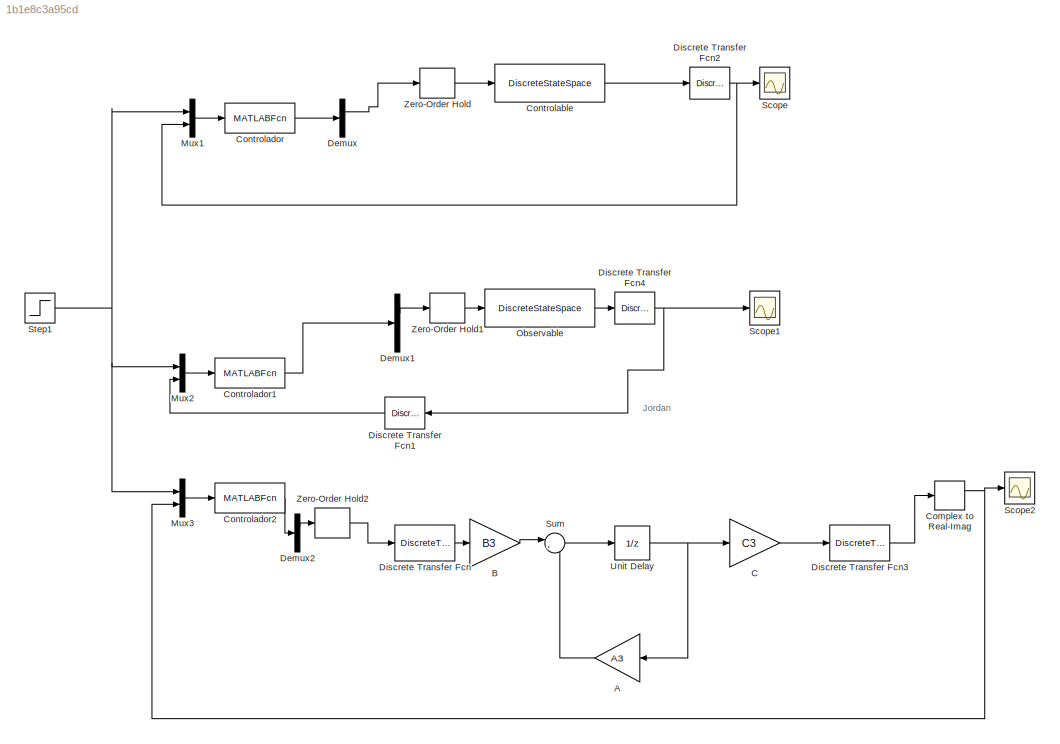
MODEL slx_1b1e8c3a95cd
KIND model
CONFIG AbsTol = auto
CONFIG EnableMultiTasking = off
CONFIG FixedStep = auto
CONFIG MaxStep = auto
CONFIG MinStep = auto
CONFIG RelTol = 1e-3
CONFIG SampleTimeConstraint = Unconstrained
CONFIG Solver = VariableStepAuto
CONFIG SolverName = VariableStepAuto
CONFIG StartTime = 0.0
CONFIG StopTime = ttotal
BLOCK [Gain] A
  Gain = A3
  Multiplication = Matrix(K*u)
  OutDataTypeStr = Inherit: Inherit via internal rule
  ParamDataTypeStr = Inherit: Inherit via internal rule
  SaturateOnIntegerOverflow = off
BLOCK [Gain] B
  Gain = B3
  Multiplication = Matrix(K*u)
  OutDataTypeStr = Inherit: Inherit via internal rule
  ParamDataTypeStr = Inherit: Inherit via internal rule
  SaturateOnIntegerOverflow = off
BLOCK [Gain] C
  Gain = C3
  Multiplication = Matrix(K*u)
  OutDataTypeStr = Inherit: Inherit via internal rule
  ParamDataTypeStr = Inherit: Inherit via internal rule
  SaturateOnIntegerOverflow = off
BLOCK [ComplexToRealImag] Complex to Real-Imag
  Ports = [1, 2]
BLOCK [DiscreteStateSpace] Controlable
  A = A1
  B = B1
  C = C1
  D = 0
  SampleTime = tmuestra
BLOCK [MATLABFcn] Controlador
  MATLABFcn = ControlDiscretoBAB(u(1), u(2))
  OutputDimensions = 2
  Ports = [1, 1]
BLOCK [MATLABFcn] Controlador1
  MATLABFcn = ControlDiscretoBAB(u(1), u(2))
  OutputDimensions = 2
  Ports = [1, 1]
BLOCK [MATLABFcn] Controlador2
  MATLABFcn = ControlDiscretoBAB(u(1), u(2))
  OutputDimensions = 2
  Ports = [1, 1]
BLOCK [Demux] Demux
  DisplayOption = bar
  Outputs = 2
  Ports = [1, 2]
BLOCK [Demux] Demux1
  DisplayOption = bar
  Outputs = 2
  Ports = [1, 2]
BLOCK [Demux] Demux2
  DisplayOption = bar
  Outputs = 2
  Ports = [1, 2]
BLOCK [DiscreteTransferFcn] Discrete Transfer Fcn
  Denominator = [1]
  InputPortMap = u0
  Ports = [1, 1]
  SampleTime = tmuestra
BLOCK [DiscreteTransferFcn] Discrete Transfer Fcn1
  Denominator = [1]
  InputPortMap = u0
  Ports = [1, 1]
  SampleTime = tmuestra
BLOCK [DiscreteTransferFcn] Discrete Transfer Fcn2
  Denominator = [1]
  InputPortMap = u0
  Ports = [1, 1]
  SampleTime = tmuestra
BLOCK [DiscreteTransferFcn] Discrete Transfer Fcn3
  Denominator = [1]
  InputPortMap = u0
  Ports = [1, 1]
  SampleTime = tmuestra
BLOCK [DiscreteTransferFcn] Discrete Transfer Fcn4
  Denominator = [1]
  InputPortMap = u0
  Ports = [1, 1]
  SampleTime = tmuestra
BLOCK [Mux] Mux1
  DisplayOption = bar
  Inputs = 2
  Ports = [2, 1]
BLOCK [Mux] Mux2
  DisplayOption = bar
  Inputs = 2
  Ports = [2, 1]
BLOCK [Mux] Mux3
  DisplayOption = bar
  Inputs = 2
  Ports = [2, 1]
BLOCK [DiscreteStateSpace] Observable
  A = A2
  B = B2
  C = C2
  D = 0
  SampleTime = tmuestra
BLOCK [Scope] Scope
  Floating = off
  NumInputPorts = 1
  Ports = [1]
  ScopeSpecificationString = Simulink.scopes.TimeScopeBlockCfg('CurrentConfiguration', extmgr.ConfigurationSet(extmgr.Configuration('Core','General UI',true),extmgr.Configuration('Core','Source UI',true),extmgr.Configuration('Sources','WiredSimulink',true,'DataLoggingVariableName','X1','DataLogging',true,'DataLoggingSaveFormat','Array'),extmgr.Configuration('Visuals','Time Domain',true,'SerializedDisplays',{struct('MinYLimRea...<+1624ch>
BLOCK [Scope] Scope1
  Floating = off
  NumInputPorts = 1
  Ports = [1]
  ScopeSpecificationString = Simulink.scopes.TimeScopeBlockCfg('CurrentConfiguration', extmgr.ConfigurationSet(extmgr.Configuration('Core','General UI',true),extmgr.Configuration('Core','Source UI',true),extmgr.Configuration('Sources','WiredSimulink',true,'DataLoggingVariableName','X2','DataLogging',true,'DataLoggingSaveFormat','Array'),extmgr.Configuration('Visuals','Time Domain',true,'SerializedDisplays',{struct('MinYLimRea...<+1625ch>
BLOCK [Scope] Scope2
  Floating = off
  NumInputPorts = 1
  Ports = [1]
  ScopeSpecificationString = Simulink.scopes.TimeScopeBlockCfg('CurrentConfiguration', extmgr.ConfigurationSet(extmgr.Configuration('Core','General UI',true),extmgr.Configuration('Core','Source UI',true),extmgr.Configuration('Sources','WiredSimulink',true,'DataLoggingVariableName','X3','DataLogging',true,'DataLoggingSaveFormat','Array'),extmgr.Configuration('Visuals','Time Domain',true,'SerializedDisplays',{struct('MinYLimRea...<+2313ch>
BLOCK [Step] Step1
  After = Yr
  SampleTime = tmuestra
BLOCK [Sum] Sum
  IconShape = round
  InputSameDT = off
  Inputs = |++
  OutDataTypeStr = Inherit: Inherit via internal rule
  Ports = [2, 1]
  SaturateOnIntegerOverflow = off
BLOCK [UnitDelay] Unit Delay
  InputProcessing = Elements as channels (sample based)
  SampleTime = tmuestra
BLOCK [ZeroOrderHold] Zero-Order Hold
  SampleTime = tmuestra
BLOCK [ZeroOrderHold] Zero-Order Hold1
  SampleTime = tmuestra
BLOCK [ZeroOrderHold] Zero-Order Hold2
  SampleTime = tmuestra
ANNOTATION (root): Jordan
LINE A:1 -> Sum:2
LINE B:1 -> Sum:1
LINE C:1 -> Discrete Transfer Fcn3:1
NET Complex to Real-Imag:1 -> Mux3:2, Scope2:1
LINE Controlable:1 -> Discrete Transfer Fcn2:1
LINE Controlador1:1 -> Demux1:1
LINE Controlador2:1 -> Demux2:1
LINE Controlador:1 -> Demux:1
LINE Demux1:1 -> Zero-Order Hold1:1
LINE Demux2:1 -> Zero-Order Hold2:1
LINE Demux:1 -> Zero-Order Hold:1
LINE Discrete Transfer Fcn1:1 -> Mux2:2
NET Discrete Transfer Fcn2:1 -> Mux1:2, Scope:1
LINE Discrete Transfer Fcn3:1 -> Complex to Real-Imag:1
NET Discrete Transfer Fcn4:1 -> Discrete Transfer Fcn1:1, Scope1:1
LINE Discrete Transfer Fcn:1 -> B:1
LINE Mux1:1 -> Controlador:1
LINE Mux2:1 -> Controlador1:1
LINE Mux3:1 -> Controlador2:1
LINE Observable:1 -> Discrete Transfer Fcn4:1
NET Step1:1 -> Mux1:1, Mux2:1, Mux3:1
LINE Sum:1 -> Unit Delay:1
NET Unit Delay:1 -> A:1, C:1
LINE Zero-Order Hold1:1 -> Observable:1
LINE Zero-Order Hold2:1 -> Discrete Transfer Fcn:1
LINE Zero-Order Hold:1 -> Controlable:1
note: NET lines group one-source signal fan-out (src -> all destinations, sorted); 1:1 wires keep LINE
